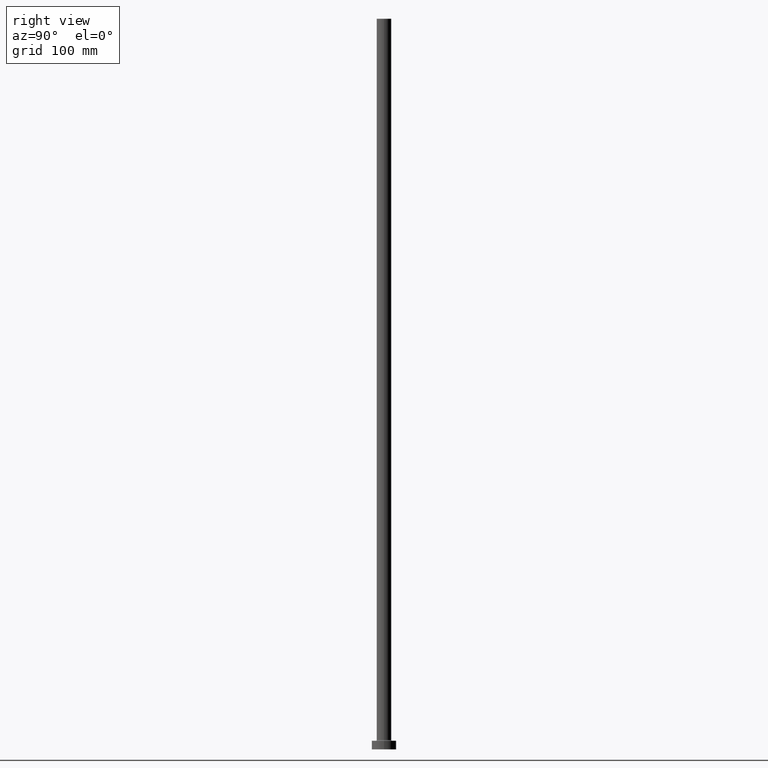
[diagram: clean part render]
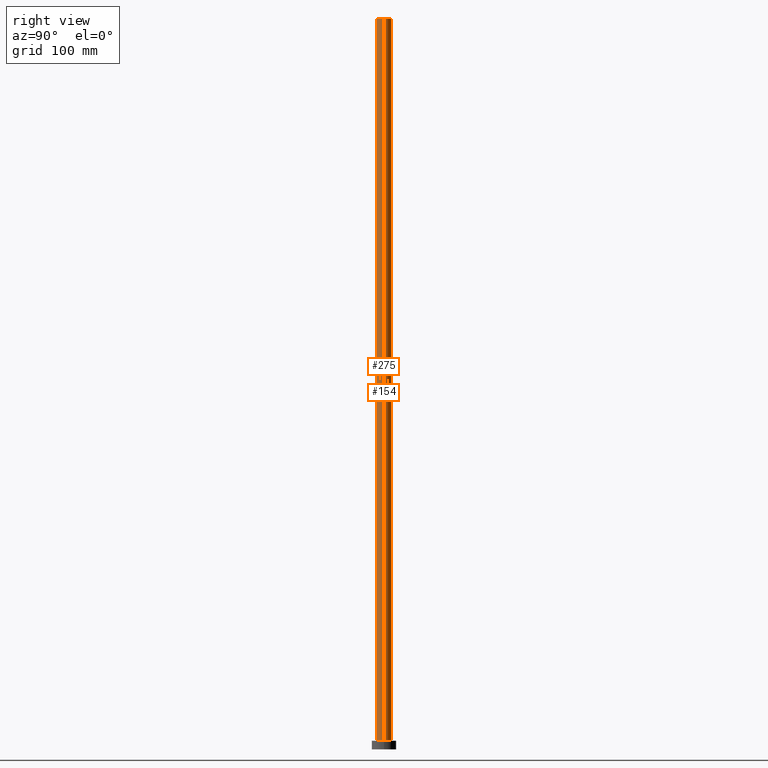
[diagram: same view with one multi-face feature highlighted, each face labeled with its STEP entity id]
A machine part, right view. The highlighted faces form ONE feature: a constant-radius fillet chain: 2 tangent blend faces with common blend radius 6 mm. The faces share edges in the B-rep.
Their STEP definitions:
[1] entity #275 (Cylinder):
#6 = VERTEX_POINT ( 'NONE', #44 ) ;
#24 = CARTESIAN_POINT ( 'NONE',  ( 0.000000000000000000, 0.000000000000000000, 600.0000000000000000 ) ) ;
#26 = ORIENTED_EDGE ( 'NONE', *, *, #407, .F. ) ;
#44 = CARTESIAN_POINT ( 'NONE',  ( 6.000000000000000888, 7.347880794884120722E-16, 7.700000000000040146 ) ) ;
#45 = CARTESIAN_POINT ( 'NONE',  ( 6.000000000000000888, 7.347880794884120722E-16, 600.0000000000000000 ) ) ;
#69 = VECTOR ( 'NONE', #345, 1000.000000000000000 ) ;
#89 = EDGE_CURVE ( 'NONE', #387, #6, #119, .T. ) ;
#108 = VECTOR ( 'NONE', #447, 1000.000000000000000 ) ;
#116 = CIRCLE ( 'NONE', #179, 6.000000000000000888 ) ;
#119 = CIRCLE ( 'NONE', #257, 6.000000000000000888 ) ;
#179 = AXIS2_PLACEMENT_3D ( 'NONE', #24, #299, #309 ) ;
#206 = CARTESIAN_POINT ( 'NONE',  ( -6.000000000000000888, 0.000000000000000000, 600.0000000000000000 ) ) ;
#211 = ORIENTED_EDGE ( 'NONE', *, *, #89, .T. ) ;
#218 = AXIS2_PLACEMENT_3D ( 'NONE', #272, #383, #235 ) ;
#229 = DIRECTION ( 'NONE',  ( 1.000000000000000000, 0.000000000000000000, 0.000000000000000000 ) ) ;
#235 = DIRECTION ( 'NONE',  ( -1.000000000000000000, 0.000000000000000000, 0.000000000000000000 ) ) ;
#250 = ORIENTED_EDGE ( 'NONE', *, *, #311, .T. ) ;
#257 = AXIS2_PLACEMENT_3D ( 'NONE', #333, #403, #229 ) ;
#272 = CARTESIAN_POINT ( 'NONE',  ( 0.000000000000000000, 0.000000000000000000, 600.0000000000000000 ) ) ;
#275 = ADVANCED_FACE ( 'NONE', ( #341 ), #410, .T. ) ;
#296 = CARTESIAN_POINT ( 'NONE',  ( 6.000000000000000888, 7.347880794884120722E-16, 600.0000000000000000 ) ) ;
#299 = DIRECTION ( 'NONE',  ( 0.000000000000000000, 0.000000000000000000, 1.000000000000000000 ) ) ;
#309 = DIRECTION ( 'NONE',  ( 1.000000000000000000, 0.000000000000000000, 0.000000000000000000 ) ) ;
#311 = EDGE_CURVE ( 'NONE', #366, #387, #417, .T. ) ;
#333 = CARTESIAN_POINT ( 'NONE',  ( 0.000000000000000000, 0.000000000000000000, 7.700000000000040146 ) ) ;
#341 = FACE_OUTER_BOUND ( 'NONE', #356, .T. ) ;
#345 = DIRECTION ( 'NONE',  ( -0.000000000000000000, -0.000000000000000000, -1.000000000000000000 ) ) ;
#356 = EDGE_LOOP ( 'NONE', ( #26, #425, #250, #211 ) ) ;
#366 = VERTEX_POINT ( 'NONE', #420 ) ;
#372 = LINE ( 'NONE', #45, #108 ) ;
#383 = DIRECTION ( 'NONE',  ( -0.000000000000000000, -0.000000000000000000, -1.000000000000000000 ) ) ;
#387 = VERTEX_POINT ( 'NONE', #411 ) ;
#403 = DIRECTION ( 'NONE',  ( 0.000000000000000000, 0.000000000000000000, 1.000000000000000000 ) ) ;
#407 = EDGE_CURVE ( 'NONE', #436, #6, #372, .T. ) ;
#410 = CYLINDRICAL_SURFACE ( 'NONE', #218, 6.000000000000000888 ) ;
#411 = CARTESIAN_POINT ( 'NONE',  ( -6.000000000000000888, 0.000000000000000000, 7.700000000000040146 ) ) ;
#417 = LINE ( 'NONE', #206, #69 ) ;
#420 = CARTESIAN_POINT ( 'NONE',  ( -6.000000000000000888, 0.000000000000000000, 600.0000000000000000 ) ) ;
#425 = ORIENTED_EDGE ( 'NONE', *, *, #439, .F. ) ;
#436 = VERTEX_POINT ( 'NONE', #296 ) ;
#439 = EDGE_CURVE ( 'NONE', #366, #436, #116, .T. ) ;
#447 = DIRECTION ( 'NONE',  ( -0.000000000000000000, -0.000000000000000000, -1.000000000000000000 ) ) ;
[2] entity #154 (Cylinder):
#6 = VERTEX_POINT ( 'NONE', #44 ) ;
#35 = DIRECTION ( 'NONE',  ( 0.000000000000000000, 0.000000000000000000, 1.000000000000000000 ) ) ;
#44 = CARTESIAN_POINT ( 'NONE',  ( 6.000000000000000888, 7.347880794884120722E-16, 7.700000000000040146 ) ) ;
#45 = CARTESIAN_POINT ( 'NONE',  ( 6.000000000000000888, 7.347880794884120722E-16, 600.0000000000000000 ) ) ;
#69 = VECTOR ( 'NONE', #345, 1000.000000000000000 ) ;
#101 = EDGE_CURVE ( 'NONE', #436, #366, #337, .T. ) ;
#102 = ORIENTED_EDGE ( 'NONE', *, *, #304, .T. ) ;
#108 = VECTOR ( 'NONE', #447, 1000.000000000000000 ) ;
#110 = CIRCLE ( 'NONE', #388, 6.000000000000000888 ) ;
#135 = AXIS2_PLACEMENT_3D ( 'NONE', #266, #35, #292 ) ;
#154 = ADVANCED_FACE ( 'NONE', ( #226 ), #260, .T. ) ;
#162 = CARTESIAN_POINT ( 'NONE',  ( 0.000000000000000000, 0.000000000000000000, 7.700000000000040146 ) ) ;
#168 = DIRECTION ( 'NONE',  ( 0.000000000000000000, 0.000000000000000000, 1.000000000000000000 ) ) ;
#202 = AXIS2_PLACEMENT_3D ( 'NONE', #297, #223, #331 ) ;
#206 = CARTESIAN_POINT ( 'NONE',  ( -6.000000000000000888, 0.000000000000000000, 600.0000000000000000 ) ) ;
#223 = DIRECTION ( 'NONE',  ( -0.000000000000000000, -0.000000000000000000, -1.000000000000000000 ) ) ;
#226 = FACE_OUTER_BOUND ( 'NONE', #318, .T. ) ;
#260 = CYLINDRICAL_SURFACE ( 'NONE', #202, 6.000000000000000888 ) ;
#261 = ORIENTED_EDGE ( 'NONE', *, *, #101, .F. ) ;
#266 = CARTESIAN_POINT ( 'NONE',  ( 0.000000000000000000, 0.000000000000000000, 600.0000000000000000 ) ) ;
#292 = DIRECTION ( 'NONE',  ( 1.000000000000000000, 0.000000000000000000, 0.000000000000000000 ) ) ;
#296 = CARTESIAN_POINT ( 'NONE',  ( 6.000000000000000888, 7.347880794884120722E-16, 600.0000000000000000 ) ) ;
#297 = CARTESIAN_POINT ( 'NONE',  ( 0.000000000000000000, 0.000000000000000000, 600.0000000000000000 ) ) ;
#303 = DIRECTION ( 'NONE',  ( 1.000000000000000000, 0.000000000000000000, 0.000000000000000000 ) ) ;
#304 = EDGE_CURVE ( 'NONE', #6, #387, #110, .T. ) ;
#311 = EDGE_CURVE ( 'NONE', #366, #387, #417, .T. ) ;
#316 = ORIENTED_EDGE ( 'NONE', *, *, #407, .T. ) ;
#318 = EDGE_LOOP ( 'NONE', ( #261, #316, #102, #390 ) ) ;
#331 = DIRECTION ( 'NONE',  ( -1.000000000000000000, 0.000000000000000000, 0.000000000000000000 ) ) ;
#337 = CIRCLE ( 'NONE', #135, 6.000000000000000888 ) ;
#345 = DIRECTION ( 'NONE',  ( -0.000000000000000000, -0.000000000000000000, -1.000000000000000000 ) ) ;
#366 = VERTEX_POINT ( 'NONE', #420 ) ;
#372 = LINE ( 'NONE', #45, #108 ) ;
#387 = VERTEX_POINT ( 'NONE', #411 ) ;
#388 = AXIS2_PLACEMENT_3D ( 'NONE', #162, #168, #303 ) ;
#390 = ORIENTED_EDGE ( 'NONE', *, *, #311, .F. ) ;
#407 = EDGE_CURVE ( 'NONE', #436, #6, #372, .T. ) ;
#411 = CARTESIAN_POINT ( 'NONE',  ( -6.000000000000000888, 0.000000000000000000, 7.700000000000040146 ) ) ;
#417 = LINE ( 'NONE', #206, #69 ) ;
#420 = CARTESIAN_POINT ( 'NONE',  ( -6.000000000000000888, 0.000000000000000000, 600.0000000000000000 ) ) ;
#436 = VERTEX_POINT ( 'NONE', #296 ) ;
#447 = DIRECTION ( 'NONE',  ( -0.000000000000000000, -0.000000000000000000, -1.000000000000000000 ) ) ;